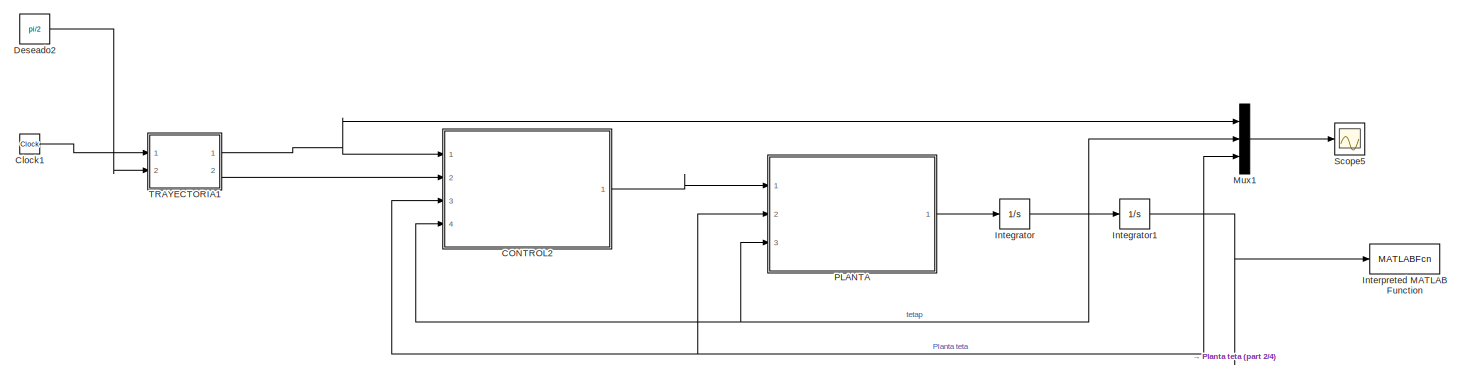
[diagram: root canvas - part 1/4, top center region]
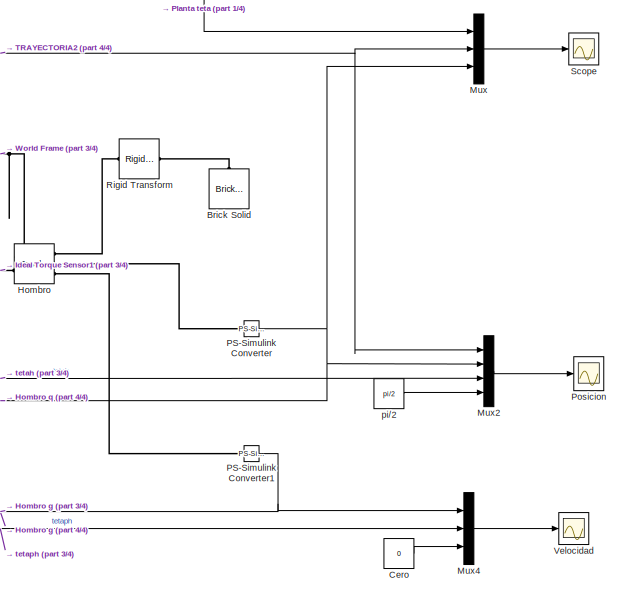
[diagram: root canvas - part 2/4, middle right region]
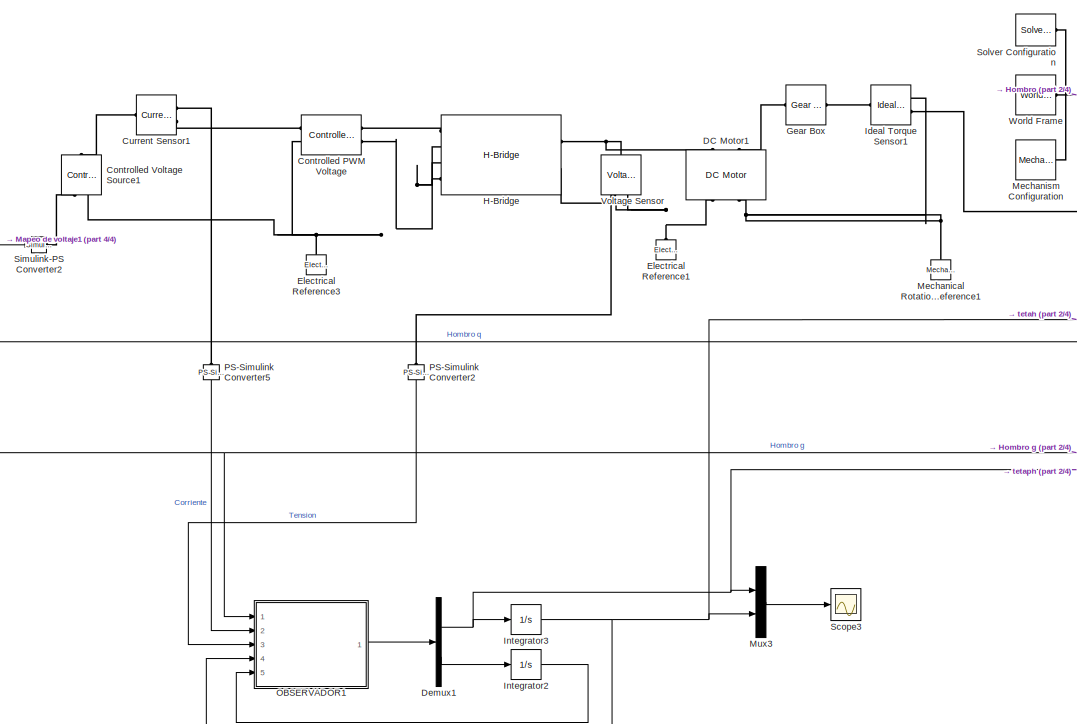
[diagram: root canvas - part 3/4, bottom center region]
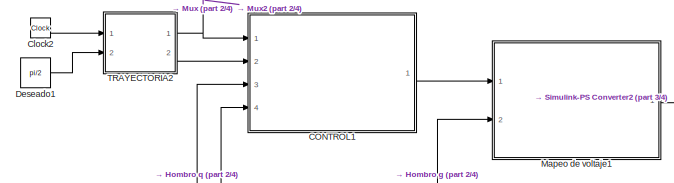
[diagram: root canvas - part 4/4, middle left region]
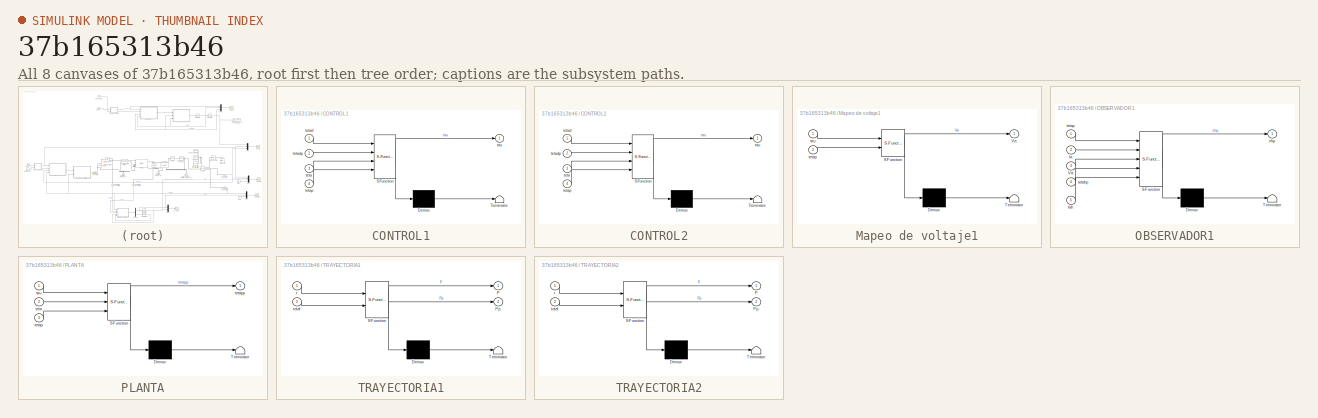
[diagram: thumbnail index - all 8 canvases of the model, root first then tree order]
MODEL slx_37b165313b46
KIND model
CONFIG AbsTol = auto
CONFIG EnableMultiTasking = off
CONFIG FixedStep = 0.01
CONFIG MaxStep = auto
CONFIG MinStep = auto
CONFIG RelTol = 1e-3
CONFIG SampleTimeConstraint = Unconstrained
CONFIG SolverName = ode15s
CONFIG StartTime = 0.0
CONFIG StopTime = 10.0
BLOCK [Reference] Brick Solid  REF=sm_lib/Body Elements/Brick Solid
  Ports = [0, 0, 0, 0, 0, 0, 1]
  SourceBlock = sm_lib/Body Elements/Brick Solid
  SourceProductName = Multibody
  SourceType = Brick Solid
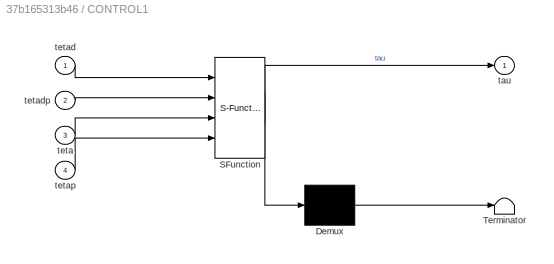
BLOCK [SubSystem] CONTROL1
  ErrorFcn = Stateflow.Translate.translate
  PermitHierarchicalResolution = ExplicitOnly
  Ports = [4, 1]
  RequestExecContextInheritance = off
  SFBlockType = MATLAB Function
  TreatAsAtomicUnit = on
BLOCK [Demux] CONTROL1/ Demux 
  Outputs = 1
  Ports = [1, 1]
BLOCK [S-Function] CONTROL1/ SFunction 
  EnableBusSupport = on
  FunctionName = sf_sfun
  PortCounts = [4 2]
  Ports = [4, 2]
  SFcnIsStateOwnerBlock = off
  SFunctionDeploymentMode = off
  Tag = Stateflow S-Function 3
BLOCK [Terminator] CONTROL1/ Terminator 
BLOCK [Outport] CONTROL1/tau
BLOCK [Inport] CONTROL1/teta
  Port = 3
BLOCK [Inport] CONTROL1/tetad
BLOCK [Inport] CONTROL1/tetadp
  Port = 2
BLOCK [Inport] CONTROL1/tetap
  Port = 4
BLOCK [SubSystem] CONTROL2
  ErrorFcn = Stateflow.Translate.translate
  PermitHierarchicalResolution = ExplicitOnly
  Ports = [4, 1]
  RequestExecContextInheritance = off
  SFBlockType = MATLAB Function
  TreatAsAtomicUnit = on
BLOCK [Demux] CONTROL2/ Demux 
  Outputs = 1
  Ports = [1, 1]
BLOCK [S-Function] CONTROL2/ SFunction 
  EnableBusSupport = on
  FunctionName = sf_sfun
  PortCounts = [4 2]
  Ports = [4, 2]
  SFcnIsStateOwnerBlock = off
  SFunctionDeploymentMode = off
  Tag = Stateflow S-Function 1
BLOCK [Terminator] CONTROL2/ Terminator 
BLOCK [Outport] CONTROL2/tau
BLOCK [Inport] CONTROL2/teta
  Port = 3
BLOCK [Inport] CONTROL2/tetad
BLOCK [Inport] CONTROL2/tetadp
  Port = 2
BLOCK [Inport] CONTROL2/tetap
  Port = 4
BLOCK [Constant] Cero
  Value = 0
  VectorParams1D = off
BLOCK [Clock] Clock1
BLOCK [Clock] Clock2
BLOCK [Reference] Controlled PWM Voltage  REF=ee_lib/Integrated Circuits/Controlled PWM
Voltage
  Ports = [0, 0, 0, 0, 0, 2, 2]
  SourceBlock = ee_lib/Integrated Circuits/Controlled PWM\nVoltage
  SourceProductBaseCode = PS
  SourceType = Controlled PWM\nVoltage
BLOCK [Reference] Controlled Voltage Source1  REF=fl_lib/Electrical/Electrical Sources/Controlled Voltage
Source
  NameLocation = right
  Ports = [0, 0, 0, 0, 0, 1, 2]
  SourceBlock = fl_lib/Electrical/Electrical Sources/Controlled Voltage\nSource
  SourceProductBaseCode = SS
  SourceType = Controlled Voltage\nSource
BLOCK [Reference] Current Sensor1  REF=fl_lib/Electrical/Electrical Sensors/Current Sensor
  Ports = [0, 0, 0, 0, 0, 1, 2]
  SourceBlock = fl_lib/Electrical/Electrical Sensors/Current Sensor
  SourceProductBaseCode = SS
  SourceType = Current Sensor
BLOCK [Reference] DC Motor1  REF=ee_lib/Electromechanical/Brushed Motors/DC Motor
  NameLocation = right
  Ports = [0, 0, 0, 0, 0, 2, 2]
  SourceBlock = ee_lib/Electromechanical/Brushed Motors/DC Motor
  SourceProductBaseCode = PS
  SourceType = DC Motor
BLOCK [Demux] Demux1
  Outputs = 2
  Ports = [1, 2]
BLOCK [Constant] Deseado1
  Value = pi/2
  VectorParams1D = off
BLOCK [Constant] Deseado2
  Value = pi/2
  VectorParams1D = off
BLOCK [Reference] Electrical Reference1  REF=fl_lib/Electrical/Electrical Elements/Electrical Reference
  NameLocation = right
  Ports = [0, 0, 0, 0, 0, 1]
  SourceBlock = fl_lib/Electrical/Electrical Elements/Electrical Reference
  SourceProductBaseCode = SS
  SourceType = Electrical Reference
BLOCK [Reference] Electrical Reference3  REF=fl_lib/Electrical/Electrical Elements/Electrical Reference
  NameLocation = right
  Ports = [0, 0, 0, 0, 0, 1]
  SourceBlock = fl_lib/Electrical/Electrical Elements/Electrical Reference
  SourceProductBaseCode = SS
  SourceType = Electrical Reference
BLOCK [Reference] Gear Box  REF=fl_lib/Mechanical/Mechanisms/Gear Box
  Ports = [0, 0, 0, 0, 0, 1, 1]
  SourceBlock = fl_lib/Mechanical/Mechanisms/Gear Box
  SourceProductBaseCode = SS
  SourceType = Gear Box
BLOCK [Reference] H-Bridge  REF=ee_lib/Semiconductors &
Converters/Converters/H-Bridge
  Ports = [0, 0, 0, 0, 0, 4, 2]
  SourceBlock = ee_lib/Semiconductors &\nConverters/Converters/H-Bridge
  SourceProductBaseCode = PS
  SourceType = H-Bridge
BLOCK [Reference] Hombro  REF=sm_lib/Joints/Revolute Joint
  Ports = [0, 0, 0, 0, 0, 2, 3]
  SourceBlock = sm_lib/Joints/Revolute Joint
  SourceProductBaseCode = MS
  SourceType = Revolute Joint
BLOCK [Reference] Ideal Torque Sensor1  REF=fl_lib/Mechanical/Mechanical Sensors/Ideal Torque Sensor
  Ports = [0, 0, 0, 0, 0, 1, 2]
  SourceBlock = fl_lib/Mechanical/Mechanical Sensors/Ideal Torque Sensor
  SourceProductBaseCode = SS
  SourceType = Ideal Torque Sensor
BLOCK [Integrator] Integrator
  Ports = [1, 1]
BLOCK [Integrator] Integrator1
  Ports = [1, 1]
BLOCK [Integrator] Integrator2
  Ports = [1, 1]
BLOCK [Integrator] Integrator3
  Ports = [1, 1]
BLOCK [MATLABFcn] Interpreted MATLAB Function
  MATLABFcn = animacion
  Ports = [1, 1]
BLOCK [SubSystem] Mapeo de voltaje1
  ErrorFcn = Stateflow.Translate.translate
  PermitHierarchicalResolution = ExplicitOnly
  Ports = [2, 1]
  RequestExecContextInheritance = off
  SFBlockType = MATLAB Function
  TreatAsAtomicUnit = on
BLOCK [Demux] Mapeo de voltaje1/ Demux 
  Outputs = 1
  Ports = [1, 1]
BLOCK [S-Function] Mapeo de voltaje1/ SFunction 
  EnableBusSupport = on
  FunctionName = sf_sfun
  PortCounts = [2 2]
  Ports = [2, 2]
  SFcnIsStateOwnerBlock = off
  SFunctionDeploymentMode = off
  Tag = Stateflow S-Function 8
BLOCK [Terminator] Mapeo de voltaje1/ Terminator 
BLOCK [Outport] Mapeo de voltaje1/Va
BLOCK [Inport] Mapeo de voltaje1/tau
BLOCK [Inport] Mapeo de voltaje1/tetap
  Port = 2
BLOCK [Reference] Mechanical Rotational Reference1  REF=fl_lib/Mechanical/Rotational Elements/Mechanical
Rotational Reference
  NameLocation = right
  Ports = [0, 0, 0, 0, 0, 1]
  SourceBlock = fl_lib/Mechanical/Rotational Elements/Mechanical\nRotational Reference
  SourceProductBaseCode = SS
  SourceType = Mechanical\nRotational Reference
BLOCK [Reference] Mechanism Configuration  REF=sm_lib/Utilities/Mechanism
Configuration
  Ports = [0, 0, 0, 0, 0, 0, 1]
  SourceBlock = sm_lib/Utilities/Mechanism\nConfiguration
  SourceProductName = Multibody
  SourceType = Mechanism\nConfiguration
BLOCK [Mux] Mux
  DisplayOption = bar
  Inputs = 3
  Ports = [3, 1]
BLOCK [Mux] Mux1
  DisplayOption = bar
  Inputs = 3
  Ports = [3, 1]
BLOCK [Mux] Mux2
  DisplayOption = bar
  Ports = [4, 1]
BLOCK [Mux] Mux3
  DisplayOption = bar
  Inputs = 2
  Ports = [2, 1]
BLOCK [Mux] Mux4
  DisplayOption = bar
  Inputs = 3
  Ports = [3, 1]
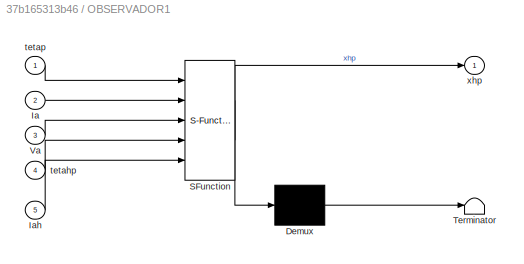
BLOCK [SubSystem] OBSERVADOR1
  ErrorFcn = Stateflow.Translate.translate
  PermitHierarchicalResolution = ExplicitOnly
  Ports = [5, 1]
  RequestExecContextInheritance = off
  SFBlockType = MATLAB Function
  TreatAsAtomicUnit = on
BLOCK [Demux] OBSERVADOR1/ Demux 
  Outputs = 1
  Ports = [1, 1]
BLOCK [S-Function] OBSERVADOR1/ SFunction 
  EnableBusSupport = on
  FunctionName = sf_sfun
  PortCounts = [5 2]
  Ports = [5, 2]
  SFcnIsStateOwnerBlock = off
  SFunctionDeploymentMode = off
  Tag = Stateflow S-Function 4
BLOCK [Terminator] OBSERVADOR1/ Terminator 
BLOCK [Inport] OBSERVADOR1/Ia
  Port = 2
BLOCK [Inport] OBSERVADOR1/Iah
  Port = 5
BLOCK [Inport] OBSERVADOR1/Va
  Port = 3
BLOCK [Inport] OBSERVADOR1/tetahp
  Port = 4
BLOCK [Inport] OBSERVADOR1/tetap
BLOCK [Outport] OBSERVADOR1/xhp
BLOCK [SubSystem] PLANTA
  ErrorFcn = Stateflow.Translate.translate
  PermitHierarchicalResolution = ExplicitOnly
  Ports = [3, 1]
  RequestExecContextInheritance = off
  SFBlockType = MATLAB Function
  TreatAsAtomicUnit = on
BLOCK [Demux] PLANTA/ Demux 
  Outputs = 1
  Ports = [1, 1]
BLOCK [S-Function] PLANTA/ SFunction 
  EnableBusSupport = on
  FunctionName = sf_sfun
  PortCounts = [3 2]
  Ports = [3, 2]
  SFcnIsStateOwnerBlock = off
  SFunctionDeploymentMode = off
  Tag = Stateflow S-Function 2
BLOCK [Terminator] PLANTA/ Terminator 
BLOCK [Inport] PLANTA/tau
BLOCK [Inport] PLANTA/teta
  Port = 2
BLOCK [Inport] PLANTA/tetap
  Port = 3
BLOCK [Outport] PLANTA/tetapp
BLOCK [Reference] PS-Simulink Converter  REF=nesl_utility/PS-Simulink
Converter
  Ports = [0, 1, 0, 0, 0, 1]
  SourceBlock = nesl_utility/PS-Simulink\nConverter
  SourceProductName = Utilities
  SourceType = PS-Simulink\nConverter
BLOCK [Reference] PS-Simulink Converter1  REF=nesl_utility/PS-Simulink
Converter
  Ports = [0, 1, 0, 0, 0, 1]
  SourceBlock = nesl_utility/PS-Simulink\nConverter
  SourceProductName = Utilities
  SourceType = PS-Simulink\nConverter
BLOCK [Reference] PS-Simulink Converter2  REF=nesl_utility/PS-Simulink
Converter
  NameLocation = left
  Ports = [0, 1, 0, 0, 0, 1]
  SourceBlock = nesl_utility/PS-Simulink\nConverter
  SourceProductBaseCode = SS
  SourceType = PS-Simulink\nConverter
BLOCK [Reference] PS-Simulink Converter5  REF=nesl_utility/PS-Simulink
Converter
  NameLocation = left
  Ports = [0, 1, 0, 0, 0, 1]
  SourceBlock = nesl_utility/PS-Simulink\nConverter
  SourceProductBaseCode = SS
  SourceType = PS-Simulink\nConverter
BLOCK [Scope] Posicion
  Floating = off
  NumInputPorts = 1
  Ports = [1]
  ScopeSpecificationString = Simulink.scopes.TimeScopeBlockCfg('CurrentConfiguration', extmgr.ConfigurationSet(extmgr.Configuration('Core','General UI',true),extmgr.Configuration('Core','Source UI',true),extmgr.Configuration('Sources','WiredSimulink',true,'DataLoggingVariableName','ScopeData2'),extmgr.Configuration('Visuals','Time Domain',true,'SerializedDisplays',{struct('MinYLimReal','-0.221','MaxYLimReal','1.98899','YLabel...<+1492ch>
BLOCK [Reference] Rigid Transform  REF=sm_lib/Frames and
Transforms/Rigid
Transform
  Ports = [0, 0, 0, 0, 0, 1, 1]
  SourceBlock = sm_lib/Frames and\nTransforms/Rigid\nTransform
  SourceProductName = Multibody
  SourceType = Rigid\nTransform
BLOCK [Scope] Scope
  Floating = off
  NumInputPorts = 1
  Ports = [1]
  ScopeSpecificationString = Simulink.scopes.TimeScopeBlockCfg('CurrentConfiguration', extmgr.ConfigurationSet(extmgr.Configuration('Core','General UI',true),extmgr.Configuration('Core','Source UI',true),extmgr.Configuration('Sources','WiredSimulink',true),extmgr.Configuration('Visuals','Time Domain',true,'SerializedDisplays',{struct('MinYLimReal','-0.19635','MaxYLimReal','1.76715','YLabelReal','','MinYLimMag','0.00000','MaxY...<+1457ch>
BLOCK [Scope] Scope3
  Floating = off
  NumInputPorts = 1
  Ports = [1]
  ScopeSpecificationString = Simulink.scopes.TimeScopeBlockCfg('CurrentConfiguration', extmgr.ConfigurationSet(extmgr.Configuration('Core','General UI',true),extmgr.Configuration('Core','Source UI',true),extmgr.Configuration('Sources','WiredSimulink',true,'DataLoggingVariableName','ScopeData1'),extmgr.Configuration('Visuals','Time Domain',true,'SerializedDisplays',{struct('MinYLimReal','-0.221','MaxYLimReal','1.98899','YLabel...<+1423ch>
BLOCK [Scope] Scope5
  Floating = off
  NumInputPorts = 1
  Ports = [1]
  ScopeSpecificationString = Simulink.scopes.TimeScopeBlockCfg('CurrentConfiguration', extmgr.ConfigurationSet(extmgr.Configuration('Core','General UI',true),extmgr.Configuration('Core','Source UI',true),extmgr.Configuration('Sources','WiredSimulink',true,'DataLoggingVariableName','ScopeData3'),extmgr.Configuration('Visuals','Time Domain',true,'SerializedDisplays',{struct('MinYLimReal','-0.19635','MaxYLimReal','1.76715','YLab...<+1463ch>
BLOCK [Reference] Simulink-PS Converter2  REF=nesl_utility/Simulink-PS
Converter
  Ports = [1, 0, 0, 0, 0, 0, 1]
  SourceBlock = nesl_utility/Simulink-PS\nConverter
  SourceProductName = Utilities
  SourceType = Simulink-PS\nConverter
BLOCK [Reference] Solver Configuration  REF=nesl_utility/Solver
Configuration
  Ports = [0, 0, 0, 0, 0, 0, 1]
  SourceBlock = nesl_utility/Solver\nConfiguration
  SourceProductName = Utilities
  SourceType = Solver\nConfiguration
BLOCK [SubSystem] TRAYECTORIA1
  ErrorFcn = Stateflow.Translate.translate
  PermitHierarchicalResolution = ExplicitOnly
  Ports = [2, 2]
  RequestExecContextInheritance = off
  SFBlockType = MATLAB Function
  TreatAsAtomicUnit = on
BLOCK [Demux] TRAYECTORIA1/ Demux 
  Outputs = 1
  Ports = [1, 1]
BLOCK [S-Function] TRAYECTORIA1/ SFunction 
  EnableBusSupport = on
  FunctionName = sf_sfun
  PortCounts = [2 3]
  Ports = [2, 3]
  SFcnIsStateOwnerBlock = off
  SFunctionDeploymentMode = off
  Tag = Stateflow S-Function 6
BLOCK [Terminator] TRAYECTORIA1/ Terminator 
BLOCK [Outport] TRAYECTORIA1/P
BLOCK [Outport] TRAYECTORIA1/Pp
  Port = 2
BLOCK [Inport] TRAYECTORIA1/t
BLOCK [Inport] TRAYECTORIA1/tetaf
  Port = 2
BLOCK [SubSystem] TRAYECTORIA2
  ErrorFcn = Stateflow.Translate.translate
  PermitHierarchicalResolution = ExplicitOnly
  Ports = [2, 2]
  RequestExecContextInheritance = off
  SFBlockType = MATLAB Function
  TreatAsAtomicUnit = on
BLOCK [Demux] TRAYECTORIA2/ Demux 
  Outputs = 1
  Ports = [1, 1]
BLOCK [S-Function] TRAYECTORIA2/ SFunction 
  EnableBusSupport = on
  FunctionName = sf_sfun
  PortCounts = [2 3]
  Ports = [2, 3]
  SFcnIsStateOwnerBlock = off
  SFunctionDeploymentMode = off
  Tag = Stateflow S-Function 5
BLOCK [Terminator] TRAYECTORIA2/ Terminator 
BLOCK [Outport] TRAYECTORIA2/P
BLOCK [Outport] TRAYECTORIA2/Pp
  Port = 2
BLOCK [Inport] TRAYECTORIA2/t
BLOCK [Inport] TRAYECTORIA2/tetaf
  Port = 2
BLOCK [Scope] Velocidad
  Floating = off
  NumInputPorts = 1
  Ports = [1]
  ScopeSpecificationString = Simulink.scopes.TimeScopeBlockCfg('CurrentConfiguration', extmgr.ConfigurationSet(extmgr.Configuration('Core','General UI',true),extmgr.Configuration('Core','Source UI',true),extmgr.Configuration('Sources','WiredSimulink',true,'DataLoggingVariableName','ScopeData1'),extmgr.Configuration('Visuals','Time Domain',true,'SerializedDisplays',{struct('MinYLimReal','-0.03505','MaxYLimReal','0.31546','YLab...<+1585ch>
BLOCK [Reference] Voltage Sensor  REF=fl_lib/Electrical/Electrical Sensors/Voltage Sensor
  NameLocation = right
  Ports = [0, 0, 0, 0, 0, 1, 2]
  SourceBlock = fl_lib/Electrical/Electrical Sensors/Voltage Sensor
  SourceProductBaseCode = SS
  SourceType = Voltage Sensor
BLOCK [Reference] World Frame  REF=sm_lib/Frames and
Transforms/World Frame
  Ports = [0, 0, 0, 0, 0, 0, 1]
  SourceBlock = sm_lib/Frames and\nTransforms/World Frame
  SourceProductName = Multibody
  SourceType = World Frame
BLOCK [Constant] pi//2
  Value = pi/2
  VectorParams1D = off
LINE CONTROL1:1 -> Mapeo de voltaje1:1
LINE CONTROL2:1 -> PLANTA:1
LINE Cero:1 -> Mux4:3
LINE Clock1:1 -> TRAYECTORIA1:1
LINE Clock2:1 -> TRAYECTORIA2:1
NET Demux1:1 -> Integrator3:1, Mux3:1, Mux4:2
LINE Demux1:2 -> Integrator2:1
LINE Deseado1:1 -> TRAYECTORIA2:2
LINE Deseado2:1 -> TRAYECTORIA1:2
NET Integrator1:1 -> CONTROL2:3, Interpreted MATLAB Function:1, Mux1:3, Mux:1, PLANTA:2
LINE Integrator2:1 -> OBSERVADOR1:5
NET Integrator3:1 -> Mux2:3, Mux3:2, OBSERVADOR1:4
NET Integrator:1 -> CONTROL2:4, Integrator1:1, Mux1:2, PLANTA:3
LINE Mapeo de voltaje1:1 -> Simulink-PS Converter2:1
LINE Mux1:1 -> Scope5:1
LINE Mux2:1 -> Posicion:1
LINE Mux3:1 -> Scope3:1
LINE Mux4:1 -> Velocidad:1
LINE Mux:1 -> Scope:1
LINE OBSERVADOR1:1 -> Demux1:1
LINE PLANTA:1 -> Integrator:1
NET PS-Simulink Converter1:1 -> CONTROL1:4, Mapeo de voltaje1:2, Mux4:1, OBSERVADOR1:1
LINE PS-Simulink Converter2:1 -> OBSERVADOR1:3
LINE PS-Simulink Converter5:1 -> OBSERVADOR1:2
NET PS-Simulink Converter:1 -> CONTROL1:3, Mux2:2, Mux:3
NET TRAYECTORIA1:1 -> CONTROL2:1, Mux1:1
LINE TRAYECTORIA1:2 -> CONTROL2:2
NET TRAYECTORIA2:1 -> CONTROL1:1, Mux2:1, Mux:2
LINE TRAYECTORIA2:2 -> CONTROL1:2
LINE pi//2:1 -> Mux2:4
PLINE Brick Solid:RConn1 -- Rigid Transform:RConn1
PLINE Controlled PWM Voltage:LConn1 -- Current Sensor1:RConn2
PNET net1: Controlled PWM Voltage:LConn2 -- Controlled PWM Voltage:RConn2 -- Controlled Voltage Source1:RConn2 -- Electrical Reference3:LConn1 -- H-Bridge:LConn2 -- H-Bridge:LConn3 -- H-Bridge:LConn4
PLINE Controlled PWM Voltage:RConn1 -- H-Bridge:LConn1
PLINE Controlled Voltage Source1:LConn1 -- Current Sensor1:LConn1
PLINE Controlled Voltage Source1:RConn1 -- Simulink-PS Converter2:RConn1
PLINE Current Sensor1:RConn1 -- PS-Simulink Converter5:LConn1
PNET net2: DC Motor1:LConn1 -- H-Bridge:RConn1 -- Voltage Sensor:LConn1
PLINE DC Motor1:LConn2 -- Gear Box:LConn1
PNET net3: DC Motor1:RConn1 -- Electrical Reference1:LConn1 -- H-Bridge:RConn2 -- Voltage Sensor:RConn2
PNET net4: DC Motor1:RConn2 -- Ideal Torque Sensor1:RConn1 -- Mechanical Rotational Reference1:LConn1
PLINE Gear Box:RConn1 -- Ideal Torque Sensor1:LConn1
PNET net5: Hombro:LConn1 -- Mechanism Configuration:RConn1 -- Solver Configuration:RConn1 -- World Frame:RConn1
PLINE Hombro:LConn2 -- Ideal Torque Sensor1:RConn2
PLINE Hombro:RConn1 -- Rigid Transform:LConn1
PLINE Hombro:RConn2 -- PS-Simulink Converter:LConn1
PLINE Hombro:RConn3 -- PS-Simulink Converter1:LConn1
PLINE PS-Simulink Converter2:LConn1 -- Voltage Sensor:RConn1
note: NET lines group one-source signal fan-out (src -> all destinations, sorted); 1:1 wires keep LINE; PNET lines group multi-terminal physical nets as a canonical sorted terminal list (undirected conserving connections); 2-terminal nets keep the pairwise PLINE form
CHART CONTROL2 states=1 transitions=1
  STATE_LABEL 'eML_blk_kernel()'
  STATE_LABEL 'SCRIPT:\nfunction tau  = fcn(tetad, tetadp, teta, tetap)\n% Parametros\nm = 0.3;\nlc = 0.25;\nI = 0.002547;\nBf = 0.0017;\ng = 9.81;\n\n% tetad =  pi / 2;\nKd = 2;\nKp = 15;\n\nVaux = Kp * (tetad - teta) - Kd * (tetap);\ntau = 1 / (m * lc^2 + I) * Vaux + Bf * (tetap) - m * g * lc * sin(teta);\n'
CHART PLANTA states=1 transitions=1
  STATE_LABEL 'eML_blk_kernel()'
  STATE_LABEL 'SCRIPT:\nfunction tetapp = fcn(tau, teta, tetap)\n% Parametros\nm = 0.3;\nlc = 0.25;\nI = 0.002547;\nBf = 0.0017;\ng = 9.81;\n\ntetapp = 1 / (m * lc^2 + I) * (tau - Bf * tetap - m * g * lc * sin(teta));\n\n'
CHART CONTROL1 states=1 transitions=1
  STATE_LABEL 'eML_blk_kernel()'
  STATE_LABEL 'SCRIPT:\nfunction tau  = fcn(tetad, tetadp, teta, tetap)\n% Parametros\nm = 0.3;\nlc = 0.25;\nI = 0.002547;\nBf = 0.0017;\ng = 9.81;\n\ngearRatio = 64*1.6;\n% tetad =  pi / 2;\nKd = 2;\nKp = 15;\n\nVaux = Kp * (tetad - teta) - Kd * (tetap);\ntau = 1 / (m * lc^2 + I) * Vaux + Bf * tetap - m * g * lc * sin(teta/gearRatio);\n\n'
CHART OBSERVADOR1 states=1 transitions=1
  STATE_LABEL 'eML_blk_kernel()'
  STATE_LABEL 'SCRIPT:\nfunction xhp = fcn(tetap, Ia, Va, tetahp, Iah)\n% Parámetros\nRa = 8.3;\nLa = 1.51e-3;\nKe = 0.0879;\nKi = 0.0879;\nJ = 80.7e-6;\nB = 14.41e-6;\nTL = 0.1;\n\n% Planta\n% tetapp = Ki / (J * Ra) * Va - Ki * Ke / (J * Ra) * tetap - B / J * tetap - 1 / J * TL;\n\nA = [-B / J, Ki / J; -Ke/La, -Ra / La];\nB_mat = [0; 1 / La];\nC = [0, 1];\n\nx = [tetap; Ia];\nxh = [tetahp; Iah];\n\ny = C * x;\nyh = C * xh;\n\n% K = [-...<+172ch>'
CHART TRAYECTORIA2 states=1 transitions=1
  STATE_LABEL 'eML_blk_kernel()'
  STATE_LABEL 'SCRIPT:\nfunction [P, Pp] = fcn(t, tetaf)\n% Parametros\nteta0 = 0;\ntetap0 = 0;\ntetapf = 0;\n% Tiempo de simulación\ntf = 10;\n\nP = teta0 + tetap0 * t + (3/tf^2) * (tetaf - teta0) * t^2 - (2/tf^3) * (tetaf - teta0) * t^3;\nPp = teta0 + (6/tf^2) * (tetaf - teta0) * t - (6 / tf^3) * (tetaf - teta0) * t^2;\n'
CHART TRAYECTORIA1 states=1 transitions=1
  STATE_LABEL 'eML_blk_kernel()'
  STATE_LABEL 'SCRIPT:\nfunction [P, Pp] = fcn(t, tetaf)\n% Parametros\nteta0 = 0;\ntetap0 = 0;\ntetapf = 0;\n% Tiempo de simulación\ntf = 10;\n\nP = teta0 + tetap0 * t + (3/tf^2) * (tetaf - teta0) * t^2 - (2/tf^3) * (tetaf - teta0) * t^3;\nPp = teta0 + (6/tf^2) * (tetaf - teta0) * t - (6 / tf^3) * (tetaf - teta0) * t^2;\n'
CHART Mapeo de voltaje1 states=1 transitions=1
  STATE_LABEL 'eML_blk_kernel()'
  STATE_LABEL 'SCRIPT:\nfunction Va = fcn(tau, tetap)\n% Parametros\nRa = 8.3;\nKi = 0.0879;\nKe = 0.0879;\n\nVa = Ra / Ki * tau + Ke * tetap;'
CHART  states=0 transitions=0
CHART  states=0 transitions=0
CHART  states=0 transitions=0
CHART  states=0 transitions=0
CHART  states=0 transitions=0
CHART  states=0 transitions=0
CHART  states=0 transitions=0
